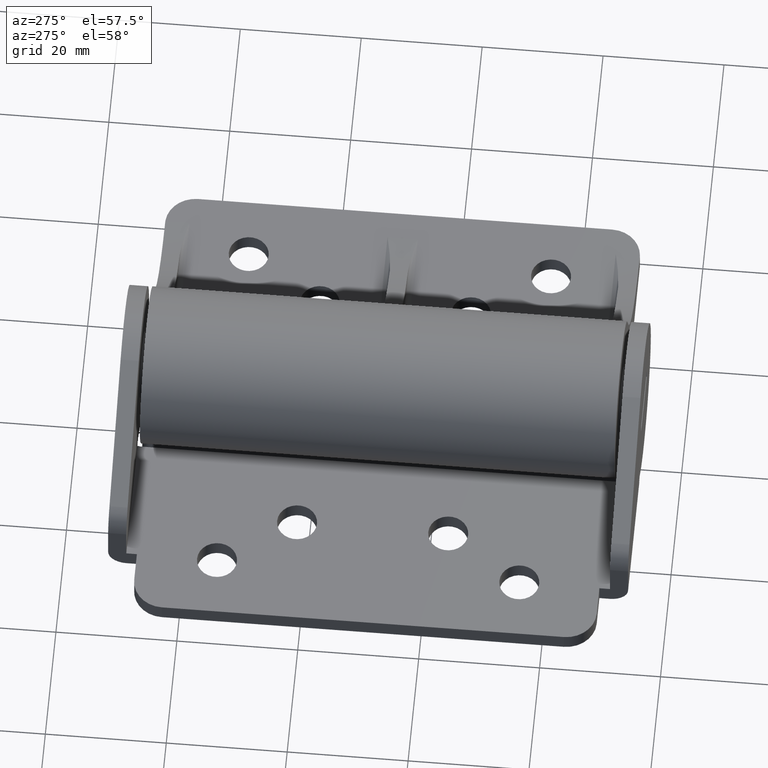
[diagram: clean part render]
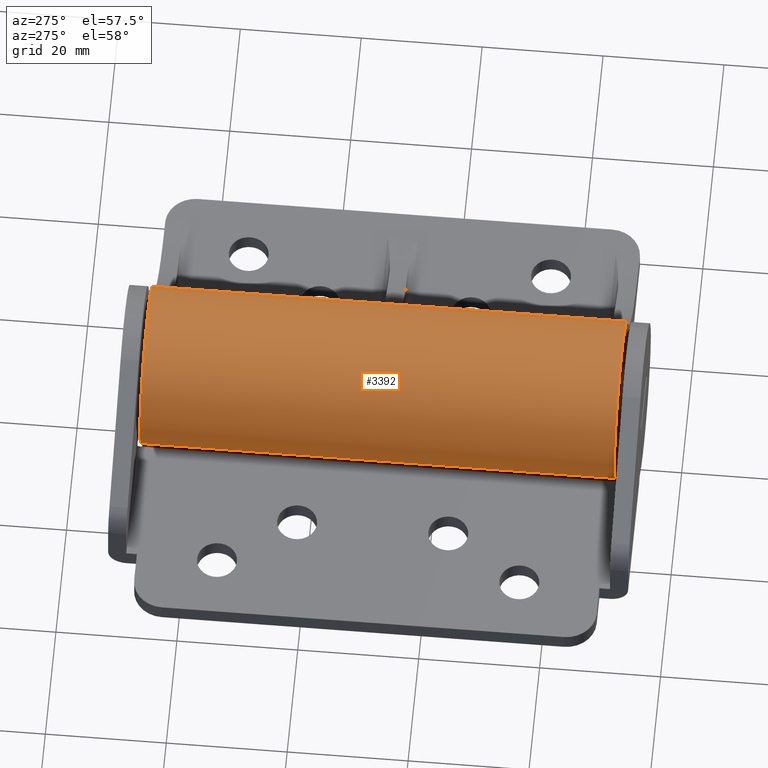
[diagram: same view with one face highlighted and labeled with its STEP entity id]
A machine part, auxiliary view. The second image highlights one B-rep face of the part: STEP entity #3392.
In plain terms, the highlighted cylindrical surface (partial cylindrical patch) has radius 13 mm, axis along (0, 1, 0).
Its self-contained STEP definition (entity closure, byte-faithful):
#47 = ORIENTED_EDGE ( 'NONE', *, *, #3568, .T. ) ;
#162 = CARTESIAN_POINT ( 'NONE',  ( 0.0000000000000000000, 0.0000000000000000000, 82.25000000000000000 ) ) ;
#163 = AXIS2_PLACEMENT_3D ( 'NONE', #1969, #2279, #1979 ) ;
#371 = CYLINDRICAL_SURFACE ( 'NONE', #2876, 13.00000000000000000 ) ;
#413 = CIRCLE ( 'NONE', #2427, 13.00000000000000000 ) ;
#465 = DIRECTION ( 'NONE',  ( 1.000000000000000000, 0.0000000000000000000, 0.0000000000000000000 ) ) ;
#750 = ORIENTED_EDGE ( 'NONE', *, *, #3105, .F. ) ;
#955 = CARTESIAN_POINT ( 'NONE',  ( -8.500000000000000000, 9.836157786453000500, -917.7500000000000000 ) ) ;
#1252 = DIRECTION ( 'NONE',  ( 0.0000000000000000000, 0.0000000000000000000, 1.000000000000000000 ) ) ;
#1380 = VERTEX_POINT ( 'NONE', #3733 ) ;
#1471 = LINE ( 'NONE', #2718, #2174 ) ;
#1489 = EDGE_CURVE ( 'NONE', #2211, #2388, #2717, .T. ) ;
#1551 = CARTESIAN_POINT ( 'NONE',  ( -8.500000000000000000, 9.836157786453000500, 3.750000000000000000 ) ) ;
#1729 = DIRECTION ( 'NONE',  ( 1.000000000000000000, 0.0000000000000000000, 0.0000000000000000000 ) ) ;
#1940 = FACE_OUTER_BOUND ( 'NONE', #2567, .T. ) ;
#1969 = CARTESIAN_POINT ( 'NONE',  ( 0.0000000000000000000, 0.0000000000000000000, 3.750000000000000000 ) ) ;
#1979 = DIRECTION ( 'NONE',  ( 1.000000000000000000, 0.0000000000000000000, 0.0000000000000000000 ) ) ;
#2174 = VECTOR ( 'NONE', #3014, 1000.000000000000000 ) ;
#2211 = VERTEX_POINT ( 'NONE', #2986 ) ;
#2232 = ORIENTED_EDGE ( 'NONE', *, *, #2894, .T. ) ;
#2244 = DIRECTION ( 'NONE',  ( -0.0000000000000000000, -0.0000000000000000000, -1.000000000000000000 ) ) ;
#2279 = DIRECTION ( 'NONE',  ( -0.0000000000000000000, -0.0000000000000000000, -1.000000000000000000 ) ) ;
#2304 = CARTESIAN_POINT ( 'NONE',  ( 0.0000000000000000000, 0.0000000000000000000, -917.7500000000000000 ) ) ;
#2320 = DIRECTION ( 'NONE',  ( 0.0000000000000000000, 0.0000000000000000000, 1.000000000000000000 ) ) ;
#2323 = ORIENTED_EDGE ( 'NONE', *, *, #1489, .F. ) ;
#2388 = VERTEX_POINT ( 'NONE', #1551 ) ;
#2427 = AXIS2_PLACEMENT_3D ( 'NONE', #162, #2244, #465 ) ;
#2567 = EDGE_LOOP ( 'NONE', ( #2232, #750, #2323, #47 ) ) ;
#2717 = CIRCLE ( 'NONE', #163, 13.00000000000000000 ) ;
#2718 = CARTESIAN_POINT ( 'NONE',  ( 12.08556750290151900, -4.789473680145959200, -917.7500000000000000 ) ) ;
#2830 = VECTOR ( 'NONE', #1252, 1000.000000000000000 ) ;
#2876 = AXIS2_PLACEMENT_3D ( 'NONE', #2304, #2320, #1729 ) ;
#2894 = EDGE_CURVE ( 'NONE', #1380, #3806, #413, .T. ) ;
#2927 = CARTESIAN_POINT ( 'NONE',  ( -8.500000000000000000, 9.836157786453000500, 82.25000000000000000 ) ) ;
#2986 = CARTESIAN_POINT ( 'NONE',  ( 12.08556750290151900, -4.789473680145959200, 3.750000000000000000 ) ) ;
#3014 = DIRECTION ( 'NONE',  ( 0.0000000000000000000, 0.0000000000000000000, 1.000000000000000000 ) ) ;
#3105 = EDGE_CURVE ( 'NONE', #2388, #3806, #3724, .T. ) ;
#3392 = ADVANCED_FACE ( 'NONE', ( #1940 ), #371, .T. ) ;
#3568 = EDGE_CURVE ( 'NONE', #2211, #1380, #1471, .T. ) ;
#3724 = LINE ( 'NONE', #955, #2830 ) ;
#3733 = CARTESIAN_POINT ( 'NONE',  ( 12.08556750290151900, -4.789473680145959200, 82.25000000000000000 ) ) ;
#3806 = VERTEX_POINT ( 'NONE', #2927 ) ;